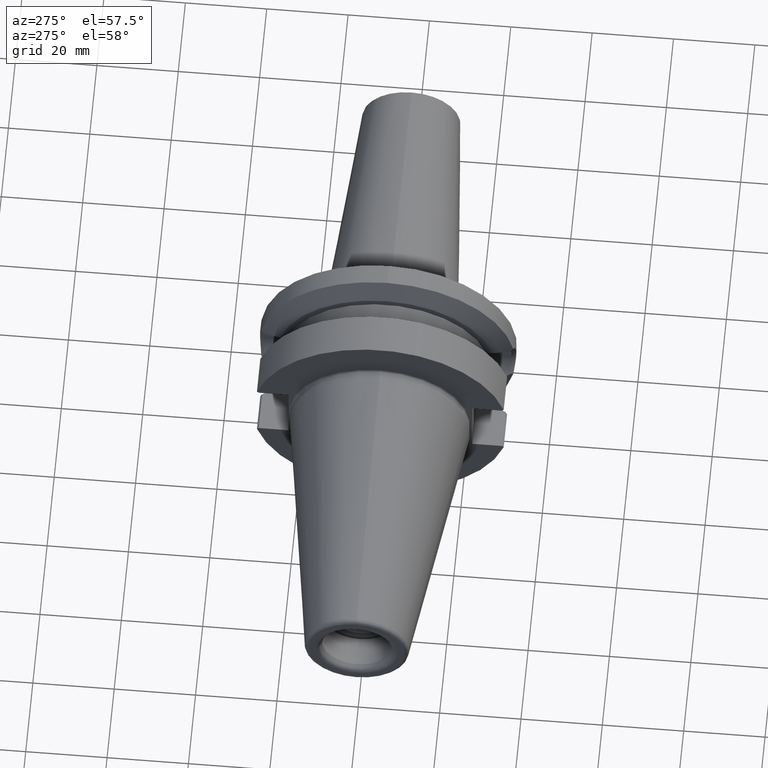
[diagram: clean part render]
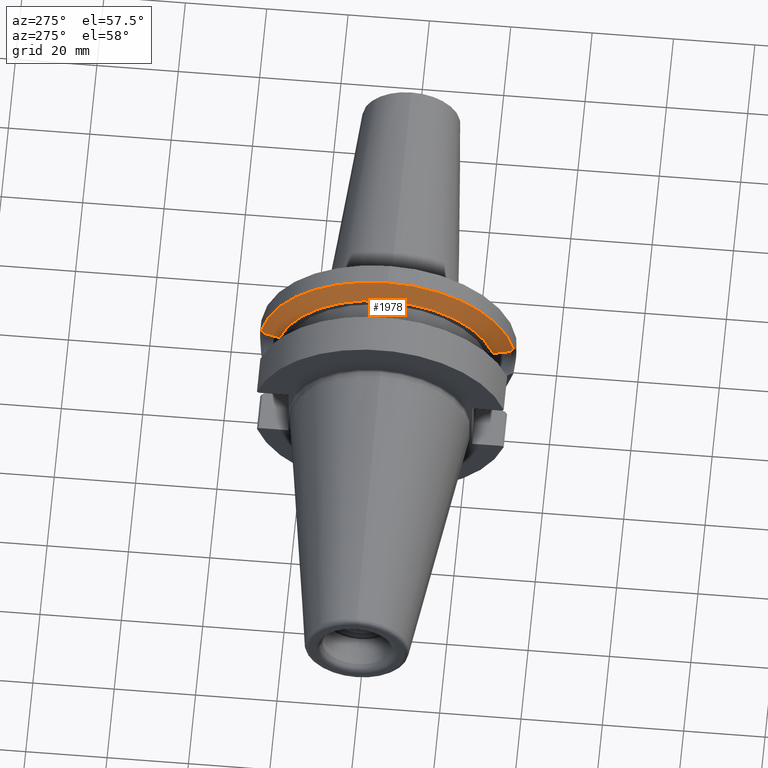
[diagram: same view with one face highlighted and labeled with its STEP entity id]
A machine part, auxiliary view. The second image highlights one B-rep face of the part: STEP entity #1978.
In plain terms, the highlighted conical surface has half-angle 60 deg.
Its self-contained STEP definition (entity closure, byte-faithful):
#505=CARTESIAN_POINT('',(2.16309635E1,0.E0,0.E0));
#506=DIRECTION('',(1.E0,0.E0,0.E0));
#507=DIRECTION('',(0.E0,0.E0,1.E0));
#508=AXIS2_PLACEMENT_3D('',#505,#506,#507);
#510=CARTESIAN_POINT('',(1.91E1,-2.622423715090E1,6.897825744392E0));
#511=CARTESIAN_POINT('',(1.937816045766E1,-2.676643204292E1,6.730473604449E0));
#512=CARTESIAN_POINT('',(1.990303269829E1,-2.779127514901E1,6.368641630073E0));
#513=CARTESIAN_POINT('',(2.059086834754E1,-2.913753076905E1,5.766648249127E0));
#514=CARTESIAN_POINT('',(2.099357945593E1,-2.992716271349E1,5.325812749184E0));
#515=CARTESIAN_POINT('',(2.117998131741E1,-3.029289531603E1,5.098022438631E0));
#517=CARTESIAN_POINT('',(2.16309635E1,3.098871085802E1,5.652415356123E0));
#518=CARTESIAN_POINT('',(2.155414334301E1,3.087051438261E1,5.558911847172E0));
#519=CARTESIAN_POINT('',(2.140215551002E1,3.063633978232E1,5.373035076681E0));
#520=CARTESIAN_POINT('',(2.125348414074E1,3.040662765083E1,5.189343646915E0));
#521=CARTESIAN_POINT('',(2.117998131741E1,3.029289531603E1,5.098022438631E0));
#523=CARTESIAN_POINT('',(2.16309635E1,0.E0,0.E0));
#524=DIRECTION('',(1.E0,0.E0,0.E0));
#525=DIRECTION('',(0.E0,9.837685986673E-1,1.794417573372E-1));
#526=AXIS2_PLACEMENT_3D('',#523,#524,#525);
#561=CARTESIAN_POINT('',(2.117998131741E1,-3.029289531603E1,5.098022438631E0));
#562=CARTESIAN_POINT('',(2.125097782396E1,-3.040274957858E1,5.186229754596E0));
#563=CARTESIAN_POINT('',(2.139711972524E1,-3.062856992174E1,5.366845705380E0));
#564=CARTESIAN_POINT('',(2.155161500107E1,-3.086662424338E1,5.555834414729E0));
#565=CARTESIAN_POINT('',(2.16309635E1,-3.098871085802E1,5.652415356123E0));
#632=CARTESIAN_POINT('',(1.91E1,0.E0,0.E0));
#633=DIRECTION('',(1.E0,0.E0,0.E0));
#634=DIRECTION('',(0.E0,9.671043850984E-1,2.543798504666E-1));
#635=AXIS2_PLACEMENT_3D('',#632,#633,#634);
#657=CARTESIAN_POINT('',(2.117998131741E1,3.029289531603E1,5.098022438631E0));
#658=CARTESIAN_POINT('',(2.104302031893E1,3.002416890941E1,5.265394095386E0));
#659=CARTESIAN_POINT('',(2.075150822612E1,2.945248076159E1,5.593999777963E0));
#660=CARTESIAN_POINT('',(2.026350284716E1,2.849665761898E1,6.060198415023E0));
#661=CARTESIAN_POINT('',(1.971773001892E1,2.742935446498E1,6.499361055365E0));
#662=CARTESIAN_POINT('',(1.931267643324E1,2.663878951656E1,6.769871338085E0));
#663=CARTESIAN_POINT('',(1.91E1,2.622423715090E1,6.897825744392E0));
#721=CARTESIAN_POINT('',(2.16309635E1,3.098871085802E1,5.652415356123E0));
#1014=CARTESIAN_POINT('',(1.91E1,2.622423715090E1,6.897825744392E0));
#1016=VERTEX_POINT('',#1014);
#1036=CARTESIAN_POINT('',(2.16309635E1,0.E0,3.15E1));
#1037=VERTEX_POINT('',#1036);
#1102=VERTEX_POINT('',#721);
#1109=VERTEX_POINT('',#521);
#1142=VERTEX_POINT('',#561);
#1143=VERTEX_POINT('',#565);
#1150=CARTESIAN_POINT('',(1.91E1,-2.622423715090E1,6.897825744392E0));
#1152=VERTEX_POINT('',#1150);
#1958=CARTESIAN_POINT('',(2.036548175E1,0.E0,0.E0));
#1959=DIRECTION('',(1.E0,0.E0,0.E0));
#1960=DIRECTION('',(0.E0,0.E0,1.E0));
#1961=AXIS2_PLACEMENT_3D('',#1958,#1959,#1960);
#1962=CONICAL_SURFACE('',#1961,2.930812131295E1,6.E1);
#1963=ORIENTED_EDGE('',*,*,#1948,.T.);
#1965=ORIENTED_EDGE('',*,*,#1964,.F.);
#1967=ORIENTED_EDGE('',*,*,#1966,.F.);
#1969=ORIENTED_EDGE('',*,*,#1968,.F.);
#1971=ORIENTED_EDGE('',*,*,#1970,.F.);
#1973=ORIENTED_EDGE('',*,*,#1972,.F.);
#1975=ORIENTED_EDGE('',*,*,#1974,.T.);
#1976=EDGE_LOOP('',(#1963,#1965,#1967,#1969,#1971,#1973,#1975));
#1977=FACE_OUTER_BOUND('',#1976,.F.);
#1978=ADVANCED_FACE('',(#1977),#1962,.T.);
#509=CIRCLE('',#508,3.15E1);
#516=B_SPLINE_CURVE_WITH_KNOTS('',3,(#510,#511,#512,#513,#514,#515),
.UNSPECIFIED.,.F.,.F.,(4,1,1,4),(0.E0,3.333333333333E-1,6.666666666667E-1,1.E0),
.UNSPECIFIED.);
#522=B_SPLINE_CURVE_WITH_KNOTS('',3,(#517,#518,#519,#520,#521),.UNSPECIFIED.,
.F.,.F.,(4,1,4),(0.E0,5.E-1,1.E0),.UNSPECIFIED.);
#527=CIRCLE('',#526,3.15E1);
#566=B_SPLINE_CURVE_WITH_KNOTS('',3,(#561,#562,#563,#564,#565),.UNSPECIFIED.,
.F.,.F.,(4,1,4),(0.E0,5.E-1,1.E0),.UNSPECIFIED.);
#636=CIRCLE('',#635,2.711624262590E1);
#664=B_SPLINE_CURVE_WITH_KNOTS('',3,(#657,#658,#659,#660,#661,#662,#663),
.UNSPECIFIED.,.F.,.F.,(4,1,1,1,4),(0.E0,2.5E-1,5.E-1,7.5E-1,1.E0),
.UNSPECIFIED.);
#1948=EDGE_CURVE('',#1037,#1143,#509,.T.);
#1964=EDGE_CURVE('',#1142,#1143,#566,.T.);
#1966=EDGE_CURVE('',#1152,#1142,#516,.T.);
#1968=EDGE_CURVE('',#1016,#1152,#636,.T.);
#1970=EDGE_CURVE('',#1109,#1016,#664,.T.);
#1972=EDGE_CURVE('',#1102,#1109,#522,.T.);
#1974=EDGE_CURVE('',#1102,#1037,#527,.T.);